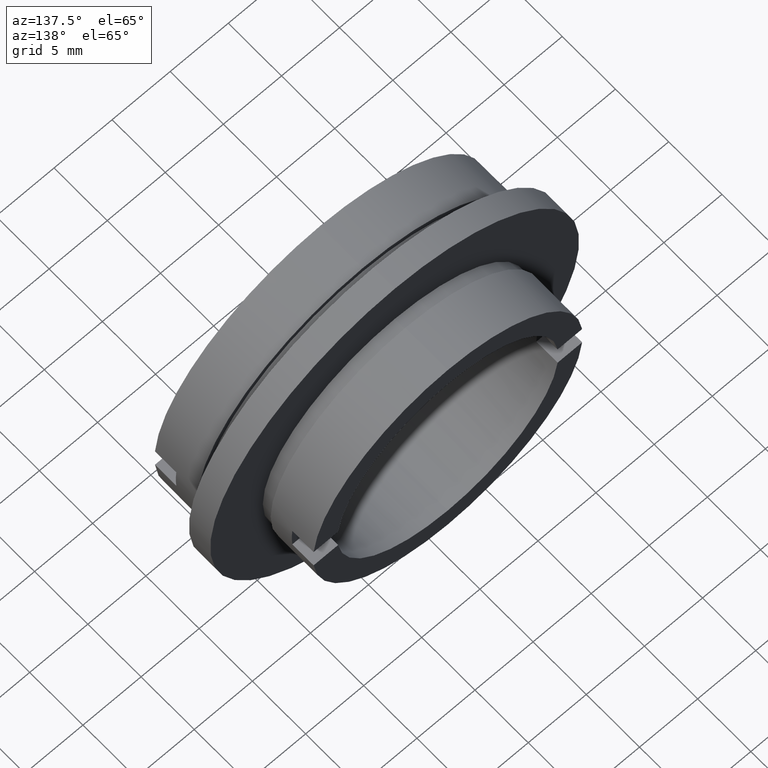
[diagram: clean part render]
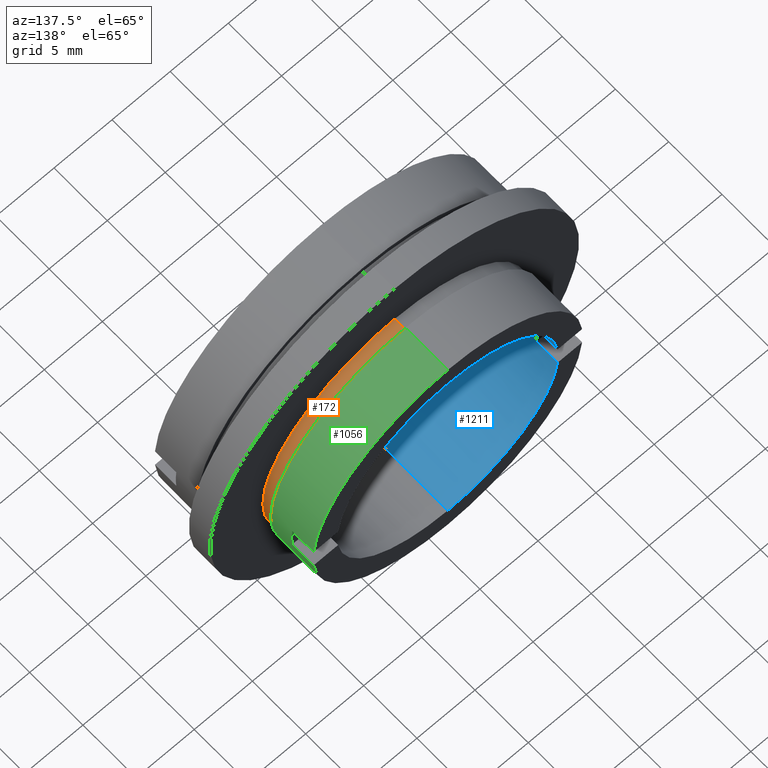
[diagram: same view with three faces highlighted in distinct colors, each labeled with its STEP entity id]
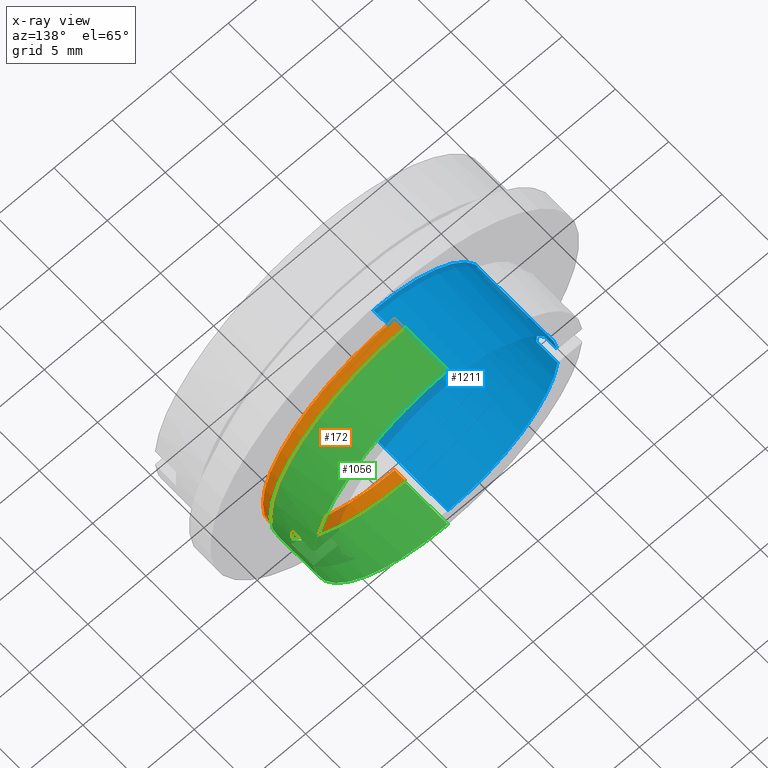
[diagram: x-ray of the same camera — body ghosted, the three highlighted faces saturated]
A machine part, auxiliary view with three faces highlighted in distinct colors.
The next image is the same camera in x-ray (body ghosted, the three faces saturated) — at least one of them is partly hidden behind the body in this view.
Their STEP definitions:

[orange] entity #172 — the highlighted cylindrical surface (partial cylindrical patch) has radius 11.35 mm, axis along (-0, 1, -0).
#15 = ORIENTED_EDGE ( 'NONE', *, *, #746, .F. ) ;
#50 = ORIENTED_EDGE ( 'NONE', *, *, #194, .T. ) ;
#112 = DIRECTION ( 'NONE',  ( -0.0000000000000000000, 1.000000000000000000, -0.0000000000000000000 ) ) ;
#126 = CIRCLE ( 'NONE', #459, 11.34999999999999600 ) ;
#163 = ORIENTED_EDGE ( 'NONE', *, *, #771, .F. ) ;
#172 = ADVANCED_FACE ( 'NONE', ( #1104 ), #672, .T. ) ;
#194 = EDGE_CURVE ( 'NONE', #1156, #752, #825, .T. ) ;
#216 = VECTOR ( 'NONE', #1071, 1000.000000000000000 ) ;
#308 = EDGE_LOOP ( 'NONE', ( #397, #50, #163, #15 ) ) ;
#312 = DIRECTION ( 'NONE',  ( 0.0000000000000000000, 0.0000000000000000000, 1.000000000000000000 ) ) ;
#335 = VERTEX_POINT ( 'NONE', #1321 ) ;
#341 = CARTESIAN_POINT ( 'NONE',  ( 0.0000000000000000000, 6.999999999999999100, 11.34999999999999600 ) ) ;
#372 = AXIS2_PLACEMENT_3D ( 'NONE', #1198, #112, #1087 ) ;
#397 = ORIENTED_EDGE ( 'NONE', *, *, #538, .T. ) ;
#432 = CARTESIAN_POINT ( 'NONE',  ( 0.0000000000000000000, 22.67749945107591400, 11.34999999999999600 ) ) ;
#459 = AXIS2_PLACEMENT_3D ( 'NONE', #841, #948, #546 ) ;
#469 = VERTEX_POINT ( 'NONE', #341 ) ;
#491 = CARTESIAN_POINT ( 'NONE',  ( 1.389974117032245400E-015, 6.999999999999999100, -11.34999999999999600 ) ) ;
#538 = EDGE_CURVE ( 'NONE', #469, #1156, #126, .T. ) ;
#546 = DIRECTION ( 'NONE',  ( 0.0000000000000000000, 0.0000000000000000000, 1.000000000000000000 ) ) ;
#672 = CYLINDRICAL_SURFACE ( 'NONE', #1043, 11.34999999999999600 ) ;
#746 = EDGE_CURVE ( 'NONE', #469, #335, #1066, .T. ) ;
#749 = CIRCLE ( 'NONE', #372, 11.34999999999999600 ) ;
#752 = VERTEX_POINT ( 'NONE', #1106 ) ;
#761 = CARTESIAN_POINT ( 'NONE',  ( 1.389974117032245400E-015, 22.67749945107591400, -11.34999999999999600 ) ) ;
#771 = EDGE_CURVE ( 'NONE', #335, #752, #749, .T. ) ;
#825 = LINE ( 'NONE', #761, #1286 ) ;
#841 = CARTESIAN_POINT ( 'NONE',  ( 0.0000000000000000000, 6.999999999999999100, 0.0000000000000000000 ) ) ;
#948 = DIRECTION ( 'NONE',  ( -0.0000000000000000000, 1.000000000000000000, -0.0000000000000000000 ) ) ;
#1043 = AXIS2_PLACEMENT_3D ( 'NONE', #1128, #1095, #312 ) ;
#1066 = LINE ( 'NONE', #432, #216 ) ;
#1071 = DIRECTION ( 'NONE',  ( -0.0000000000000000000, 1.000000000000000000, -0.0000000000000000000 ) ) ;
#1087 = DIRECTION ( 'NONE',  ( 0.0000000000000000000, 0.0000000000000000000, 1.000000000000000000 ) ) ;
#1095 = DIRECTION ( 'NONE',  ( -0.0000000000000000000, 1.000000000000000000, -0.0000000000000000000 ) ) ;
#1104 = FACE_OUTER_BOUND ( 'NONE', #308, .T. ) ;
#1106 = CARTESIAN_POINT ( 'NONE',  ( 1.389974117032245400E-015, 8.000000000000000000, -11.34999999999999600 ) ) ;
#1128 = CARTESIAN_POINT ( 'NONE',  ( 0.0000000000000000000, 22.67749945107591400, 0.0000000000000000000 ) ) ;
#1156 = VERTEX_POINT ( 'NONE', #491 ) ;
#1198 = CARTESIAN_POINT ( 'NONE',  ( 0.0000000000000000000, 8.000000000000000000, 0.0000000000000000000 ) ) ;
#1235 = DIRECTION ( 'NONE',  ( -0.0000000000000000000, 1.000000000000000000, -0.0000000000000000000 ) ) ;
#1286 = VECTOR ( 'NONE', #1235, 1000.000000000000000 ) ;
#1321 = CARTESIAN_POINT ( 'NONE',  ( 0.0000000000000000000, 8.000000000000000000, 11.34999999999999600 ) ) ;

[blue] entity #1211 — the highlighted cylindrical surface (partial cylindrical patch) has radius 9.5 mm, axis along (-0, 1, -0).
#18 = FACE_OUTER_BOUND ( 'NONE', #448, .T. ) ;
#37 = ORIENTED_EDGE ( 'NONE', *, *, #193, .F. ) ;
#68 = VERTEX_POINT ( 'NONE', #222 ) ;
#70 = ORIENTED_EDGE ( 'NONE', *, *, #699, .F. ) ;
#105 = DIRECTION ( 'NONE',  ( 0.0000000000000000000, -1.000000000000000000, 0.0000000000000000000 ) ) ;
#106 = CARTESIAN_POINT ( 'NONE',  ( -9.447221813845590800, 10.00000000000000000, 1.000000000000001300 ) ) ;
#117 = AXIS2_PLACEMENT_3D ( 'NONE', #155, #510, #638 ) ;
#153 = LINE ( 'NONE', #201, #1018 ) ;
#155 = CARTESIAN_POINT ( 'NONE',  ( 0.0000000000000000000, 12.00000000000000000, 0.0000000000000000000 ) ) ;
#169 = CIRCLE ( 'NONE', #1142, 9.499999999999998200 ) ;
#176 = DIRECTION ( 'NONE',  ( -0.0000000000000000000, 1.000000000000000000, -0.0000000000000000000 ) ) ;
#180 = CARTESIAN_POINT ( 'NONE',  ( 1.163414459189985300E-015, 22.67749945107591400, -9.499999999999998200 ) ) ;
#193 = EDGE_CURVE ( 'NONE', #1029, #334, #385, .T. ) ;
#195 = CYLINDRICAL_SURFACE ( 'NONE', #484, 9.499999999999998200 ) ;
#201 = CARTESIAN_POINT ( 'NONE',  ( -9.447221813845589000, 22.67749945107591400, 1.000000000000002900 ) ) ;
#203 = VECTOR ( 'NONE', #176, 1000.000000000000000 ) ;
#222 = CARTESIAN_POINT ( 'NONE',  ( 0.0000000000000000000, 5.000000000000000900, 9.499999999999998200 ) ) ;
#232 = LINE ( 'NONE', #1297, #891 ) ;
#236 = EDGE_CURVE ( 'NONE', #557, #68, #169, .T. ) ;
#271 = VERTEX_POINT ( 'NONE', #1073 ) ;
#274 = CARTESIAN_POINT ( 'NONE',  ( 0.0000000000000000000, 10.00000000000000000, 0.0000000000000000000 ) ) ;
#278 = CARTESIAN_POINT ( 'NONE',  ( 0.0000000000000000000, 22.67749945107591400, 0.0000000000000000000 ) ) ;
#293 = DIRECTION ( 'NONE',  ( -0.0000000000000000000, -1.000000000000000000, -0.0000000000000000000 ) ) ;
#334 = VERTEX_POINT ( 'NONE', #1328 ) ;
#355 = DIRECTION ( 'NONE',  ( 0.0000000000000000000, 0.0000000000000000000, 1.000000000000000000 ) ) ;
#385 = CIRCLE ( 'NONE', #1114, 9.499999999999998200 ) ;
#389 = CARTESIAN_POINT ( 'NONE',  ( 0.0000000000000000000, 12.00000000000000000, 0.0000000000000000000 ) ) ;
#440 = CARTESIAN_POINT ( 'NONE',  ( 0.0000000000000000000, 5.000000000000000900, 0.0000000000000000000 ) ) ;
#448 = EDGE_LOOP ( 'NONE', ( #722, #714, #1017, #70, #37, #965, #450, #463 ) ) ;
#450 = ORIENTED_EDGE ( 'NONE', *, *, #1330, .T. ) ;
#463 = ORIENTED_EDGE ( 'NONE', *, *, #615, .F. ) ;
#484 = AXIS2_PLACEMENT_3D ( 'NONE', #278, #665, #355 ) ;
#490 = VECTOR ( 'NONE', #1246, 1000.000000000000000 ) ;
#505 = LINE ( 'NONE', #1318, #490 ) ;
#510 = DIRECTION ( 'NONE',  ( -0.0000000000000000000, 1.000000000000000000, -0.0000000000000000000 ) ) ;
#524 = DIRECTION ( 'NONE',  ( 0.0000000000000000000, 0.0000000000000000000, 1.000000000000000000 ) ) ;
#535 = VERTEX_POINT ( 'NONE', #801 ) ;
#557 = VERTEX_POINT ( 'NONE', #1102 ) ;
#615 = EDGE_CURVE ( 'NONE', #68, #1151, #232, .T. ) ;
#638 = DIRECTION ( 'NONE',  ( 0.0000000000000000000, 0.0000000000000000000, 1.000000000000000000 ) ) ;
#665 = DIRECTION ( 'NONE',  ( -0.0000000000000000000, 1.000000000000000000, -0.0000000000000000000 ) ) ;
#699 = EDGE_CURVE ( 'NONE', #334, #271, #505, .T. ) ;
#714 = ORIENTED_EDGE ( 'NONE', *, *, #1050, .T. ) ;
#722 = ORIENTED_EDGE ( 'NONE', *, *, #236, .F. ) ;
#729 = DIRECTION ( 'NONE',  ( -0.0000000000000000000, 1.000000000000000000, -0.0000000000000000000 ) ) ;
#788 = CARTESIAN_POINT ( 'NONE',  ( -9.447221813845590800, 12.00000000000000000, 1.000000000000001600 ) ) ;
#801 = CARTESIAN_POINT ( 'NONE',  ( 1.163414459189985300E-015, 12.00000000000000000, -9.499999999999998200 ) ) ;
#833 = DIRECTION ( 'NONE',  ( -0.0000000000000000000, 1.000000000000000000, -0.0000000000000000000 ) ) ;
#837 = CIRCLE ( 'NONE', #882, 9.499999999999998200 ) ;
#855 = DIRECTION ( 'NONE',  ( 0.0000000000000000000, 0.0000000000000000000, -1.000000000000000000 ) ) ;
#873 = EDGE_CURVE ( 'NONE', #535, #271, #907, .T. ) ;
#882 = AXIS2_PLACEMENT_3D ( 'NONE', #389, #833, #524 ) ;
#891 = VECTOR ( 'NONE', #1278, 1000.000000000000000 ) ;
#907 = CIRCLE ( 'NONE', #117, 9.499999999999998200 ) ;
#940 = VERTEX_POINT ( 'NONE', #788 ) ;
#965 = ORIENTED_EDGE ( 'NONE', *, *, #1195, .F. ) ;
#1008 = CARTESIAN_POINT ( 'NONE',  ( 0.0000000000000000000, 12.00000000000000000, 9.499999999999998200 ) ) ;
#1017 = ORIENTED_EDGE ( 'NONE', *, *, #873, .T. ) ;
#1018 = VECTOR ( 'NONE', #105, 1000.000000000000000 ) ;
#1029 = VERTEX_POINT ( 'NONE', #106 ) ;
#1050 = EDGE_CURVE ( 'NONE', #557, #535, #1276, .T. ) ;
#1073 = CARTESIAN_POINT ( 'NONE',  ( -9.447221813845590800, 12.00000000000000000, -0.9999999999999978900 ) ) ;
#1102 = CARTESIAN_POINT ( 'NONE',  ( 1.163414459189985300E-015, 5.000000000000000900, -9.499999999999998200 ) ) ;
#1114 = AXIS2_PLACEMENT_3D ( 'NONE', #274, #293, #855 ) ;
#1142 = AXIS2_PLACEMENT_3D ( 'NONE', #440, #729, #1266 ) ;
#1151 = VERTEX_POINT ( 'NONE', #1008 ) ;
#1195 = EDGE_CURVE ( 'NONE', #940, #1029, #153, .T. ) ;
#1211 = ADVANCED_FACE ( 'NONE', ( #18 ), #195, .F. ) ;
#1246 = DIRECTION ( 'NONE',  ( -0.0000000000000000000, 1.000000000000000000, -0.0000000000000000000 ) ) ;
#1266 = DIRECTION ( 'NONE',  ( 0.0000000000000000000, 0.0000000000000000000, 1.000000000000000000 ) ) ;
#1276 = LINE ( 'NONE', #180, #203 ) ;
#1278 = DIRECTION ( 'NONE',  ( -0.0000000000000000000, 1.000000000000000000, -0.0000000000000000000 ) ) ;
#1297 = CARTESIAN_POINT ( 'NONE',  ( 0.0000000000000000000, 22.67749945107591400, 9.499999999999998200 ) ) ;
#1318 = CARTESIAN_POINT ( 'NONE',  ( -9.447221813845589000, 22.67749945107591400, -1.000000000000000000 ) ) ;
#1328 = CARTESIAN_POINT ( 'NONE',  ( -9.447221813845590800, 10.00000000000000000, -0.9999999999999974500 ) ) ;
#1330 = EDGE_CURVE ( 'NONE', #940, #1151, #837, .T. ) ;

[green] entity #1056 — the highlighted cylindrical surface (partial cylindrical patch) has radius 11.6 mm, axis along (-0, 1, -0).
#9 = VECTOR ( 'NONE', #558, 1000.000000000000000 ) ;
#19 = LINE ( 'NONE', #724, #88 ) ;
#35 = ORIENTED_EDGE ( 'NONE', *, *, #286, .T. ) ;
#57 = CARTESIAN_POINT ( 'NONE',  ( 0.0000000000000000000, 22.67749945107591400, 0.0000000000000000000 ) ) ;
#63 = CARTESIAN_POINT ( 'NONE',  ( 0.0000000000000000000, 8.000000000000000000, 0.0000000000000000000 ) ) ;
#83 = VERTEX_POINT ( 'NONE', #608 ) ;
#88 = VECTOR ( 'NONE', #783, 1000.000000000000000 ) ;
#133 = VERTEX_POINT ( 'NONE', #1166 ) ;
#144 = EDGE_CURVE ( 'NONE', #1224, #1135, #1103, .T. ) ;
#183 = CARTESIAN_POINT ( 'NONE',  ( 11.55681617055493000, 10.00000000000000000, -0.9999999999999974500 ) ) ;
#218 = FACE_OUTER_BOUND ( 'NONE', #1230, .T. ) ;
#265 = CARTESIAN_POINT ( 'NONE',  ( 11.55681617055492800, 22.67749945107591400, -1.000000000000000000 ) ) ;
#286 = EDGE_CURVE ( 'NONE', #537, #1185, #1258, .T. ) ;
#304 = CARTESIAN_POINT ( 'NONE',  ( 0.0000000000000000000, 12.00000000000000000, 0.0000000000000000000 ) ) ;
#314 = DIRECTION ( 'NONE',  ( -0.0000000000000000000, 1.000000000000000000, -0.0000000000000000000 ) ) ;
#318 = DIRECTION ( 'NONE',  ( -0.0000000000000000000, 1.000000000000000000, -0.0000000000000000000 ) ) ;
#319 = DIRECTION ( 'NONE',  ( 0.0000000000000000000, 1.000000000000000000, 0.0000000000000000000 ) ) ;
#337 = AXIS2_PLACEMENT_3D ( 'NONE', #63, #314, #730 ) ;
#350 = CARTESIAN_POINT ( 'NONE',  ( 0.0000000000000000000, 12.00000000000000000, 11.59999999999999800 ) ) ;
#356 = DIRECTION ( 'NONE',  ( 1.243449787580175200E-014, 0.0000000000000000000, -1.000000000000000000 ) ) ;
#407 = AXIS2_PLACEMENT_3D ( 'NONE', #1124, #1115, #1100 ) ;
#435 = CARTESIAN_POINT ( 'NONE',  ( 1.420590287010929300E-015, 22.67749945107591400, -11.59999999999999800 ) ) ;
#439 = EDGE_CURVE ( 'NONE', #133, #1224, #1193, .T. ) ;
#441 = CIRCLE ( 'NONE', #1075, 11.59999999999999800 ) ;
#462 = CARTESIAN_POINT ( 'NONE',  ( 0.0000000000000000000, 22.67749945107591400, 11.59999999999999800 ) ) ;
#466 = VERTEX_POINT ( 'NONE', #183 ) ;
#480 = ORIENTED_EDGE ( 'NONE', *, *, #828, .F. ) ;
#486 = EDGE_CURVE ( 'NONE', #1135, #991, #19, .T. ) ;
#537 = VERTEX_POINT ( 'NONE', #1067 ) ;
#558 = DIRECTION ( 'NONE',  ( -0.0000000000000000000, 1.000000000000000000, -0.0000000000000000000 ) ) ;
#587 = CIRCLE ( 'NONE', #1022, 11.59999999999999800 ) ;
#594 = DIRECTION ( 'NONE',  ( -0.0000000000000000000, 1.000000000000000000, -0.0000000000000000000 ) ) ;
#608 = CARTESIAN_POINT ( 'NONE',  ( 11.55681617055493000, 12.00000000000000000, -0.9999999999999978900 ) ) ;
#620 = ORIENTED_EDGE ( 'NONE', *, *, #1147, .F. ) ;
#628 = EDGE_CURVE ( 'NONE', #83, #1185, #441, .T. ) ;
#645 = CARTESIAN_POINT ( 'NONE',  ( 1.420590287010929300E-015, 12.00000000000000000, -11.59999999999999800 ) ) ;
#646 = ORIENTED_EDGE ( 'NONE', *, *, #144, .F. ) ;
#661 = VECTOR ( 'NONE', #594, 1000.000000000000000 ) ;
#677 = DIRECTION ( 'NONE',  ( -0.0000000000000000000, 1.000000000000000000, -0.0000000000000000000 ) ) ;
#705 = CIRCLE ( 'NONE', #337, 11.59999999999999800 ) ;
#713 = LINE ( 'NONE', #265, #661 ) ;
#724 = CARTESIAN_POINT ( 'NONE',  ( 11.55681617055493000, 22.67749945107591400, 1.000000000000002900 ) ) ;
#727 = VECTOR ( 'NONE', #318, 1000.000000000000000 ) ;
#730 = DIRECTION ( 'NONE',  ( 0.0000000000000000000, 0.0000000000000000000, 1.000000000000000000 ) ) ;
#744 = DIRECTION ( 'NONE',  ( 0.0000000000000000000, 0.0000000000000000000, 1.000000000000000000 ) ) ;
#783 = DIRECTION ( 'NONE',  ( 0.0000000000000000000, -1.000000000000000000, 0.0000000000000000000 ) ) ;
#828 = EDGE_CURVE ( 'NONE', #466, #83, #713, .T. ) ;
#848 = CARTESIAN_POINT ( 'NONE',  ( 0.0000000000000000000, 10.00000000000000000, 0.0000000000000000000 ) ) ;
#932 = AXIS2_PLACEMENT_3D ( 'NONE', #57, #677, #744 ) ;
#944 = DIRECTION ( 'NONE',  ( 0.0000000000000000000, 0.0000000000000000000, 1.000000000000000000 ) ) ;
#956 = CARTESIAN_POINT ( 'NONE',  ( 11.55681617055493000, 10.00000000000000000, 1.000000000000001300 ) ) ;
#986 = CARTESIAN_POINT ( 'NONE',  ( 11.55681617055493000, 12.00000000000000000, 1.000000000000001600 ) ) ;
#991 = VERTEX_POINT ( 'NONE', #956 ) ;
#1004 = CYLINDRICAL_SURFACE ( 'NONE', #932, 11.59999999999999800 ) ;
#1013 = DIRECTION ( 'NONE',  ( -0.0000000000000000000, 1.000000000000000000, -0.0000000000000000000 ) ) ;
#1022 = AXIS2_PLACEMENT_3D ( 'NONE', #848, #319, #356 ) ;
#1056 = ADVANCED_FACE ( 'NONE', ( #218 ), #1004, .T. ) ;
#1067 = CARTESIAN_POINT ( 'NONE',  ( 1.420590287010929300E-015, 8.000000000000000000, -11.59999999999999800 ) ) ;
#1075 = AXIS2_PLACEMENT_3D ( 'NONE', #304, #1013, #944 ) ;
#1100 = DIRECTION ( 'NONE',  ( 0.0000000000000000000, 0.0000000000000000000, 1.000000000000000000 ) ) ;
#1103 = CIRCLE ( 'NONE', #407, 11.59999999999999800 ) ;
#1115 = DIRECTION ( 'NONE',  ( -0.0000000000000000000, 1.000000000000000000, -0.0000000000000000000 ) ) ;
#1124 = CARTESIAN_POINT ( 'NONE',  ( 0.0000000000000000000, 12.00000000000000000, 0.0000000000000000000 ) ) ;
#1135 = VERTEX_POINT ( 'NONE', #986 ) ;
#1147 = EDGE_CURVE ( 'NONE', #991, #466, #587, .T. ) ;
#1166 = CARTESIAN_POINT ( 'NONE',  ( 0.0000000000000000000, 8.000000000000000000, 11.59999999999999800 ) ) ;
#1183 = ORIENTED_EDGE ( 'NONE', *, *, #439, .F. ) ;
#1185 = VERTEX_POINT ( 'NONE', #645 ) ;
#1193 = LINE ( 'NONE', #462, #9 ) ;
#1224 = VERTEX_POINT ( 'NONE', #350 ) ;
#1230 = EDGE_LOOP ( 'NONE', ( #1296, #35, #1326, #480, #620, #1253, #646, #1183 ) ) ;
#1239 = EDGE_CURVE ( 'NONE', #133, #537, #705, .T. ) ;
#1253 = ORIENTED_EDGE ( 'NONE', *, *, #486, .F. ) ;
#1258 = LINE ( 'NONE', #435, #727 ) ;
#1296 = ORIENTED_EDGE ( 'NONE', *, *, #1239, .T. ) ;
#1326 = ORIENTED_EDGE ( 'NONE', *, *, #628, .F. ) ;